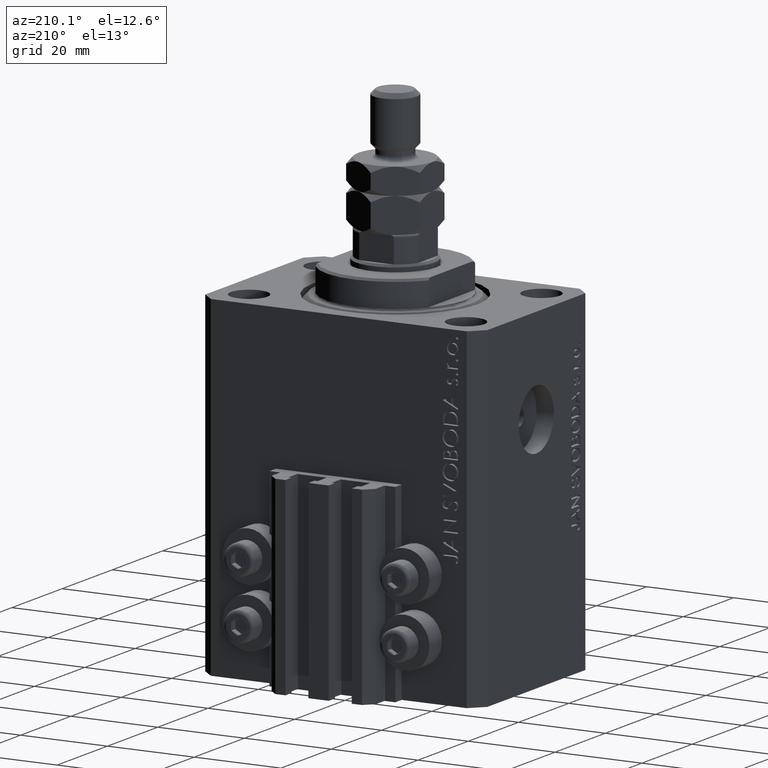
[diagram: clean part render]
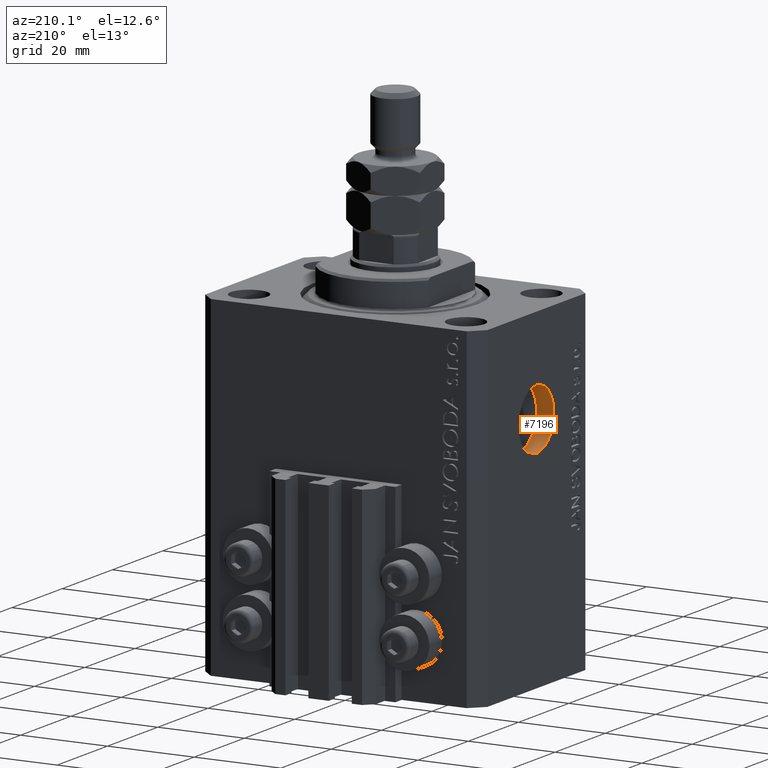
[diagram: same view with one face highlighted and labeled with its STEP entity id]
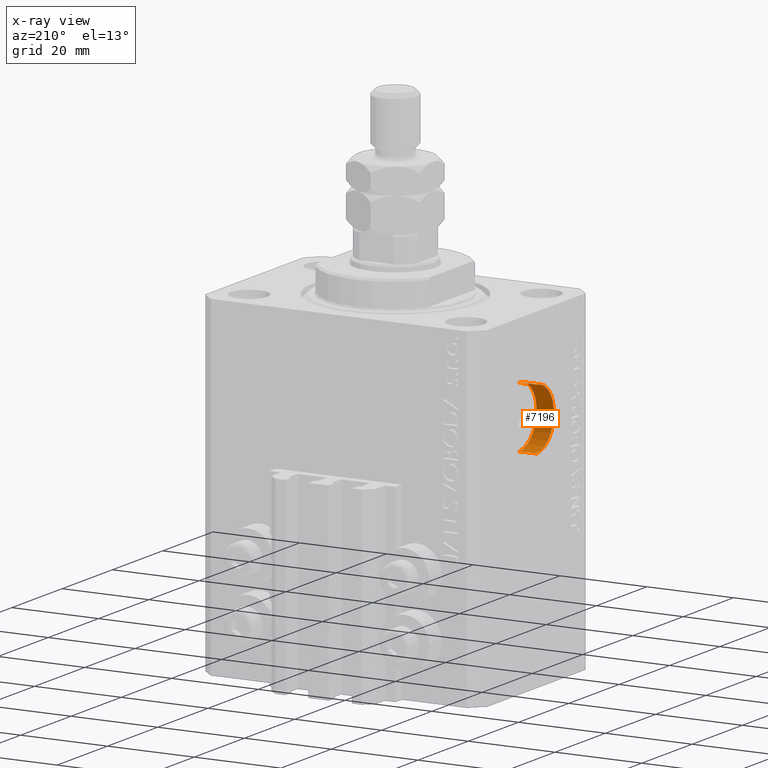
[diagram: x-ray of the same camera — body ghosted, the highlighted face saturated]
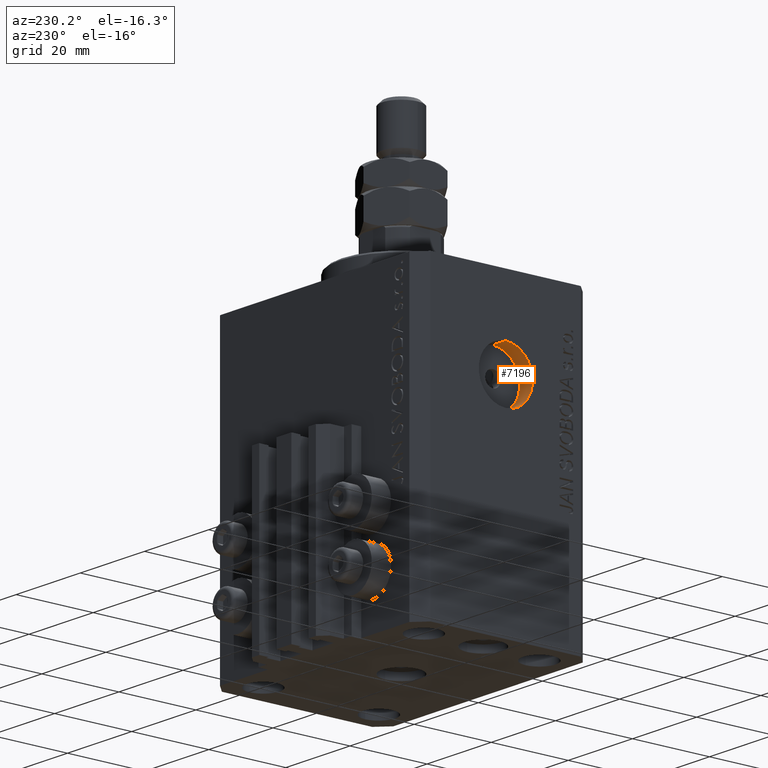
[diagram: same view with one face highlighted and labeled with its STEP entity id]
A machine part, auxiliary view. The second image highlights one B-rep face of the part: STEP entity #7196.
The next image is the same camera in x-ray: the body ghosted, the highlighted face saturated — about 0% of this face is hidden behind the body in this view.
A second angle (auxiliary view) of the same face is appended — the face is thin or edge-on in the first view.
In plain terms, the highlighted cylindrical surface (edge-blend (fillet) strip) has radius 7 mm, axis along (-1, -0, -0).
Its self-contained STEP definition (entity closure, byte-faithful):
#436 = AXIS2_PLACEMENT_3D ( 'NONE', #21935, #37054, #44724 ) ;
#704 = CIRCLE ( 'NONE', #4669, 6.999999999999999112 ) ;
#2055 = DIRECTION ( 'NONE',  ( -1.000000000000000000, -0.000000000000000000, -0.000000000000000000 ) ) ;
#4669 = AXIS2_PLACEMENT_3D ( 'NONE', #23770, #5427, #16569 ) ;
#5427 = DIRECTION ( 'NONE',  ( -1.000000000000000000, 0.000000000000000000, 0.000000000000000000 ) ) ;
#7196 = ADVANCED_FACE ( 'NONE', ( #17958 ), #29345, .F. ) ;
#7279 = DIRECTION ( 'NONE',  ( 0.000000000000000000, 0.000000000000000000, 1.000000000000000000 ) ) ;
#7591 = VECTOR ( 'NONE', #24456, 1000.000000000000000 ) ;
#7662 = AXIS2_PLACEMENT_3D ( 'NONE', #26092, #14463, #7279 ) ;
#7907 = CARTESIAN_POINT ( 'NONE',  ( -32.49999999999650413, 0.000000000000000000, -15.00000000000000000 ) ) ;
#8601 = CARTESIAN_POINT ( 'NONE',  ( -28.49999999999650413, 0.000000000000000000, -15.00000000000000000 ) ) ;
#10101 = EDGE_CURVE ( 'NONE', #16659, #40743, #10455, .T. ) ;
#10455 = LINE ( 'NONE', #36006, #28721 ) ;
#13374 = VERTEX_POINT ( 'NONE', #43052 ) ;
#14463 = DIRECTION ( 'NONE',  ( -1.000000000000000000, 0.000000000000000000, 0.000000000000000000 ) ) ;
#16040 = LINE ( 'NONE', #8601, #7591 ) ;
#16569 = DIRECTION ( 'NONE',  ( 0.000000000000000000, 0.000000000000000000, 1.000000000000000000 ) ) ;
#16659 = VERTEX_POINT ( 'NONE', #43441 ) ;
#17941 = CIRCLE ( 'NONE', #7662, 6.999999999999999112 ) ;
#17958 = FACE_OUTER_BOUND ( 'NONE', #38939, .T. ) ;
#21095 = ORIENTED_EDGE ( 'NONE', *, *, #32766, .T. ) ;
#21935 = CARTESIAN_POINT ( 'NONE',  ( -28.49999999999650413, 0.000000000000000000, -22.00000000000000000 ) ) ;
#23770 = CARTESIAN_POINT ( 'NONE',  ( -28.49999999999650413, 0.000000000000000000, -22.00000000000000000 ) ) ;
#24456 = DIRECTION ( 'NONE',  ( -1.000000000000000000, -0.000000000000000000, -0.000000000000000000 ) ) ;
#25280 = ORIENTED_EDGE ( 'NONE', *, *, #30630, .F. ) ;
#26092 = CARTESIAN_POINT ( 'NONE',  ( -32.49999999999650413, 0.000000000000000000, -22.00000000000000000 ) ) ;
#27122 = ORIENTED_EDGE ( 'NONE', *, *, #10101, .T. ) ;
#28721 = VECTOR ( 'NONE', #2055, 1000.000000000000000 ) ;
#29345 = CYLINDRICAL_SURFACE ( 'NONE', #436, 6.999999999999999112 ) ;
#30398 = CARTESIAN_POINT ( 'NONE',  ( -32.49999999999650413, 8.572527594031474176E-16, -28.99999999999999645 ) ) ;
#30630 = EDGE_CURVE ( 'NONE', #13374, #35862, #16040, .T. ) ;
#32766 = EDGE_CURVE ( 'NONE', #40743, #35862, #17941, .T. ) ;
#35862 = VERTEX_POINT ( 'NONE', #7907 ) ;
#36006 = CARTESIAN_POINT ( 'NONE',  ( -28.49999999999650413, 8.572527594031473190E-16, -28.99999999999999645 ) ) ;
#36749 = EDGE_CURVE ( 'NONE', #16659, #13374, #704, .T. ) ;
#37054 = DIRECTION ( 'NONE',  ( -1.000000000000000000, -0.000000000000000000, -0.000000000000000000 ) ) ;
#38939 = EDGE_LOOP ( 'NONE', ( #45351, #27122, #21095, #25280 ) ) ;
#40743 = VERTEX_POINT ( 'NONE', #30398 ) ;
#43052 = CARTESIAN_POINT ( 'NONE',  ( -28.49999999999650413, 0.000000000000000000, -15.00000000000000000 ) ) ;
#43441 = CARTESIAN_POINT ( 'NONE',  ( -28.49999999999650413, 8.572527594031474176E-16, -28.99999999999999645 ) ) ;
#44724 = DIRECTION ( 'NONE',  ( 0.000000000000000000, 0.000000000000000000, 1.000000000000000000 ) ) ;
#45351 = ORIENTED_EDGE ( 'NONE', *, *, #36749, .F. ) ;